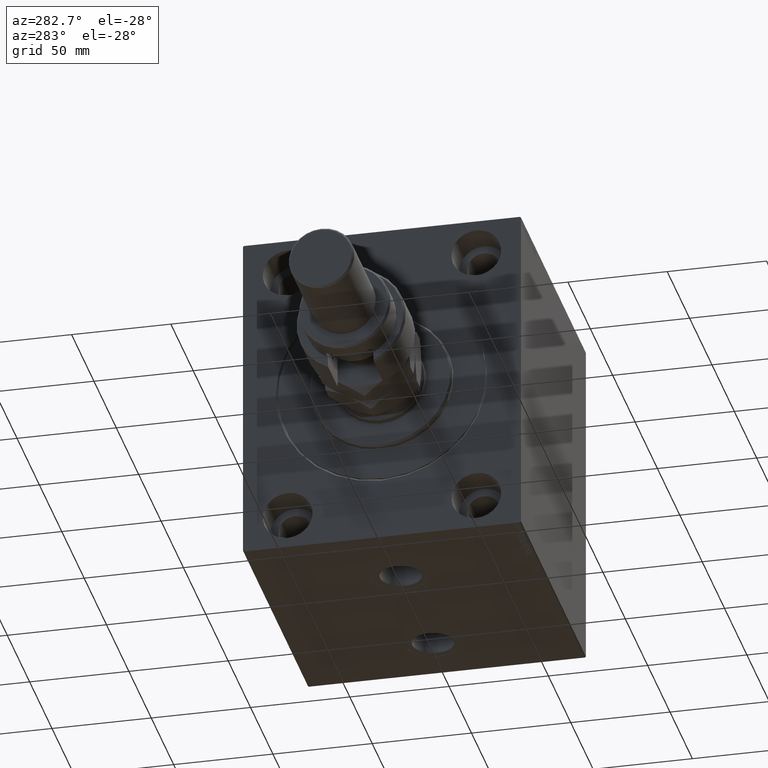
[diagram: clean part render]
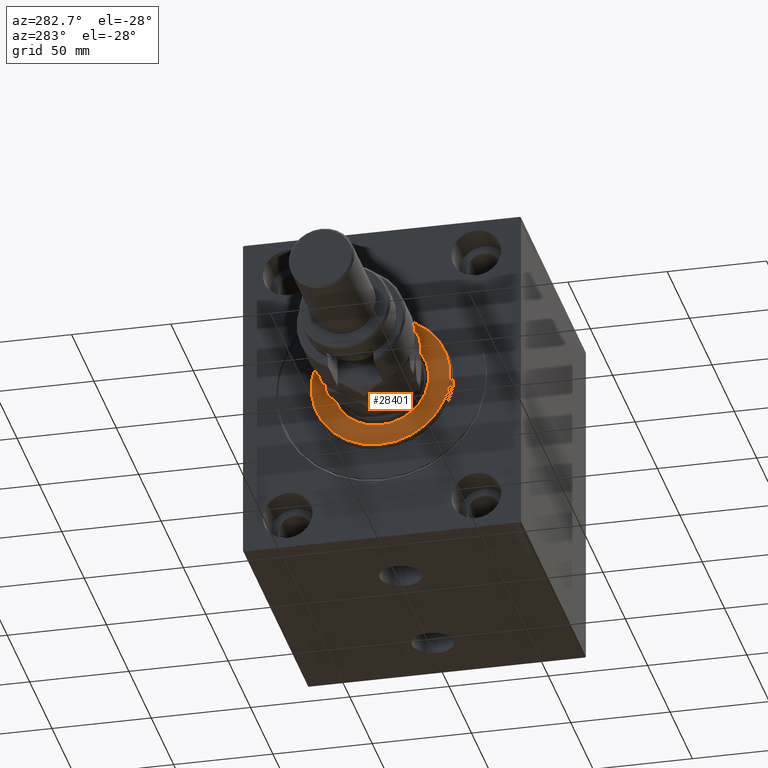
[diagram: same view with one face highlighted and labeled with its STEP entity id]
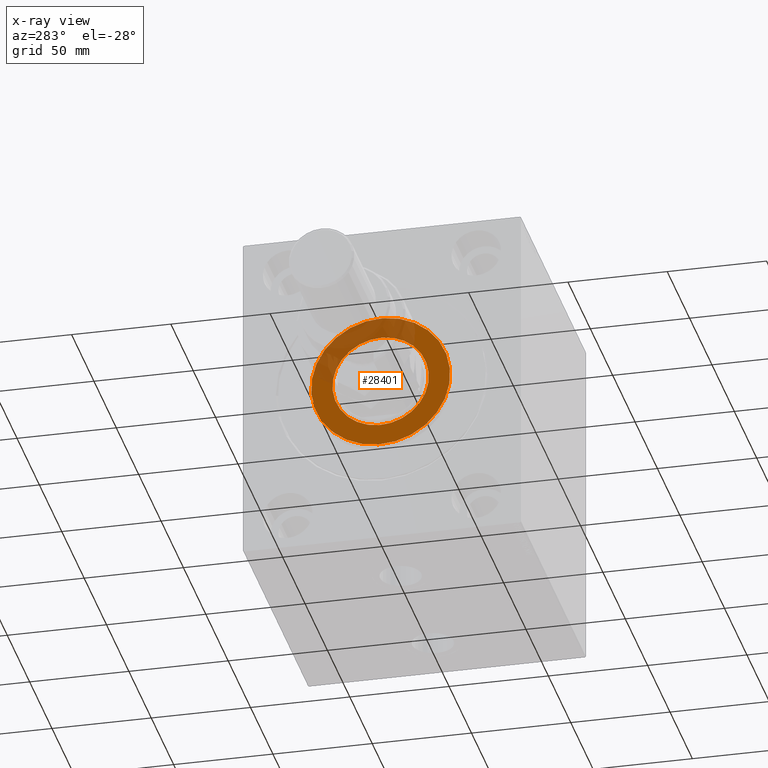
[diagram: x-ray of the same camera — body ghosted, the highlighted face saturated]
A machine part, auxiliary view. The second image highlights one B-rep face of the part: STEP entity #28401.
The next image is the same camera in x-ray: the body ghosted, the highlighted face saturated — about 32% of this face is hidden behind the body in this view.
In plain terms, the highlighted planar face has unit normal (-1, 0, 0).
Its self-contained STEP definition (entity closure, byte-faithful):
#976 = FACE_OUTER_BOUND ( 'NONE', #42937, .T. ) ;
#992 = VERTEX_POINT ( 'NONE', #8067 ) ;
#1591 = CIRCLE ( 'NONE', #31057, 24.25000000000000000 ) ;
#2883 = CIRCLE ( 'NONE', #22275, 35.00000000000001421 ) ;
#4397 = EDGE_CURVE ( 'NONE', #29617, #46556, #2883, .T. ) ;
#4675 = AXIS2_PLACEMENT_3D ( 'NONE', #38511, #38277, #35339 ) ;
#5175 = DIRECTION ( 'NONE',  ( 0.000000000000000000, 0.000000000000000000, -1.000000000000000000 ) ) ;
#5432 = ORIENTED_EDGE ( 'NONE', *, *, #17267, .T. ) ;
#6880 = DIRECTION ( 'NONE',  ( 0.000000000000000000, 0.000000000000000000, -1.000000000000000000 ) ) ;
#7805 = DIRECTION ( 'NONE',  ( 1.000000000000000000, -0.000000000000000000, 0.000000000000000000 ) ) ;
#8067 = CARTESIAN_POINT ( 'NONE',  ( 3.000000000000000000, 0.000000000000000000, 24.25000000000000000 ) ) ;
#8281 = CARTESIAN_POINT ( 'NONE',  ( 3.000000000000000000, 0.000000000000000000, 0.000000000000000000 ) ) ;
#9277 = EDGE_LOOP ( 'NONE', ( #28582, #5432 ) ) ;
#11951 = EDGE_CURVE ( 'NONE', #46556, #29617, #44185, .T. ) ;
#12640 = DIRECTION ( 'NONE',  ( 1.000000000000000000, -0.000000000000000000, 0.000000000000000000 ) ) ;
#13953 = ORIENTED_EDGE ( 'NONE', *, *, #11951, .T. ) ;
#15541 = CIRCLE ( 'NONE', #4675, 24.25000000000000000 ) ;
#16168 = EDGE_CURVE ( 'NONE', #992, #39152, #15541, .T. ) ;
#16584 = DIRECTION ( 'NONE',  ( 1.000000000000000000, -0.000000000000000000, 0.000000000000000000 ) ) ;
#17069 = CARTESIAN_POINT ( 'NONE',  ( 3.000000000000000000, 0.000000000000000000, 0.000000000000000000 ) ) ;
#17267 = EDGE_CURVE ( 'NONE', #39152, #992, #1591, .T. ) ;
#18373 = CARTESIAN_POINT ( 'NONE',  ( 3.000000000000000000, 4.347496136973104859E-15, -35.00000000000001421 ) ) ;
#20635 = DIRECTION ( 'NONE',  ( 0.000000000000000000, 0.000000000000000000, -1.000000000000000000 ) ) ;
#20828 = CARTESIAN_POINT ( 'NONE',  ( 3.000000000000000000, 0.000000000000000000, 35.00000000000001421 ) ) ;
#22275 = AXIS2_PLACEMENT_3D ( 'NONE', #32026, #12640, #20635 ) ;
#25081 = CARTESIAN_POINT ( 'NONE',  ( 3.000000000000000000, 0.000000000000000000, 0.000000000000000000 ) ) ;
#25846 = ORIENTED_EDGE ( 'NONE', *, *, #4397, .T. ) ;
#26949 = PLANE ( 'NONE',  #27386 ) ;
#27386 = AXIS2_PLACEMENT_3D ( 'NONE', #8281, #7805, #30121 ) ;
#28401 = ADVANCED_FACE ( 'NONE', ( #976, #34248 ), #26949, .T. ) ;
#28582 = ORIENTED_EDGE ( 'NONE', *, *, #16168, .T. ) ;
#29617 = VERTEX_POINT ( 'NONE', #20828 ) ;
#30121 = DIRECTION ( 'NONE',  ( 0.000000000000000000, 0.000000000000000000, -1.000000000000000000 ) ) ;
#31057 = AXIS2_PLACEMENT_3D ( 'NONE', #25081, #32115, #6880 ) ;
#32026 = CARTESIAN_POINT ( 'NONE',  ( 3.000000000000000000, 0.000000000000000000, 0.000000000000000000 ) ) ;
#32115 = DIRECTION ( 'NONE',  ( -1.000000000000000000, 0.000000000000000000, -0.000000000000000000 ) ) ;
#34122 = AXIS2_PLACEMENT_3D ( 'NONE', #17069, #16584, #5175 ) ;
#34248 = FACE_BOUND ( 'NONE', #9277, .T. ) ;
#35339 = DIRECTION ( 'NONE',  ( 0.000000000000000000, 0.000000000000000000, -1.000000000000000000 ) ) ;
#38277 = DIRECTION ( 'NONE',  ( -1.000000000000000000, 0.000000000000000000, -0.000000000000000000 ) ) ;
#38511 = CARTESIAN_POINT ( 'NONE',  ( 3.000000000000000000, 0.000000000000000000, 0.000000000000000000 ) ) ;
#39152 = VERTEX_POINT ( 'NONE', #41033 ) ;
#41033 = CARTESIAN_POINT ( 'NONE',  ( 3.000000000000000000, 2.969768487932331287E-15, -24.25000000000000000 ) ) ;
#42937 = EDGE_LOOP ( 'NONE', ( #25846, #13953 ) ) ;
#44185 = CIRCLE ( 'NONE', #34122, 35.00000000000001421 ) ;
#46556 = VERTEX_POINT ( 'NONE', #18373 ) ;